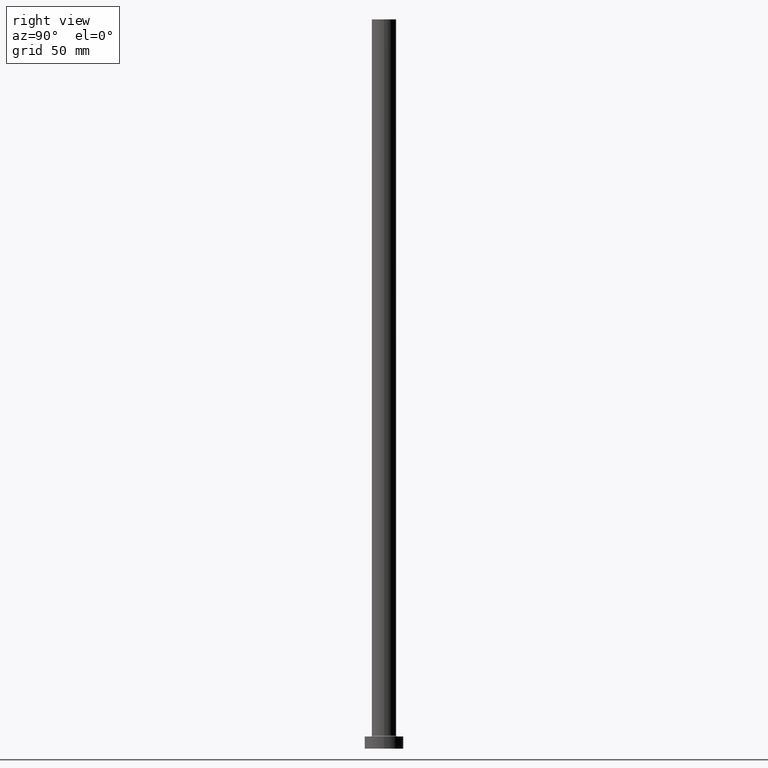
[diagram: clean part render]
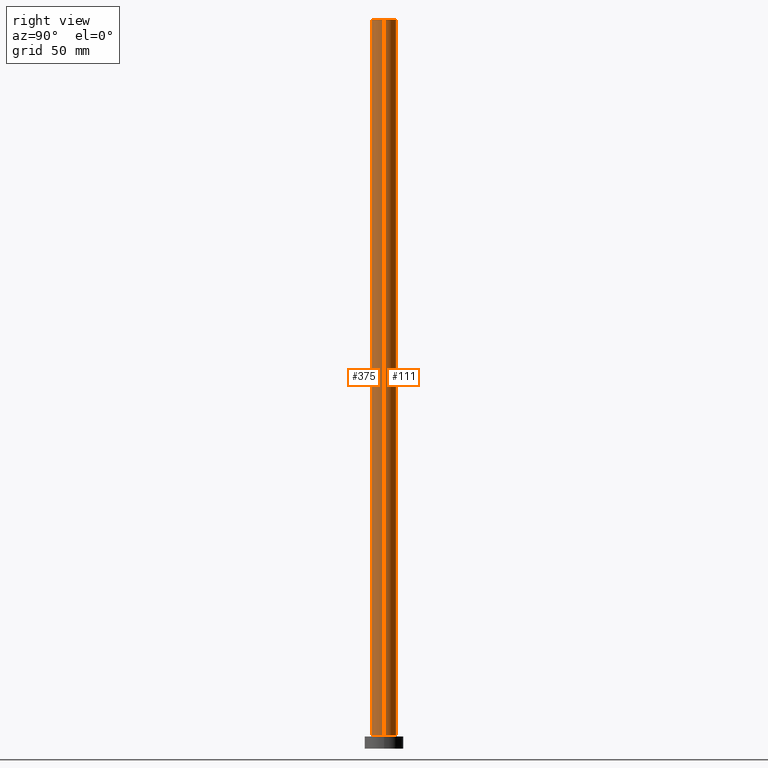
[diagram: same view with one multi-face feature highlighted, each face labeled with its STEP entity id]
A machine part, right view. The highlighted faces form ONE feature: a constant-radius fillet chain: 2 tangent blend faces with common blend radius 5 mm. The faces share edges in the B-rep.
Their STEP definitions:
[1] entity #111 (Cylinder):
#12 = AXIS2_PLACEMENT_3D ( 'NONE', #35, #395, #247 ) ;
#20 = AXIS2_PLACEMENT_3D ( 'NONE', #175, #209, #314 ) ;
#35 = CARTESIAN_POINT ( 'NONE',  ( 0.000000000000000000, 0.000000000000000000, 300.0000000000000000 ) ) ;
#45 = EDGE_CURVE ( 'NONE', #140, #272, #235, .T. ) ;
#53 = CARTESIAN_POINT ( 'NONE',  ( -5.000000000000000000, 0.000000000000000000, 300.0000000000000000 ) ) ;
#61 = LINE ( 'NONE', #206, #381 ) ;
#64 = AXIS2_PLACEMENT_3D ( 'NONE', #431, #407, #326 ) ;
#72 = EDGE_CURVE ( 'NONE', #140, #253, #354, .T. ) ;
#91 = ORIENTED_EDGE ( 'NONE', *, *, #296, .F. ) ;
#102 = ORIENTED_EDGE ( 'NONE', *, *, #45, .F. ) ;
#111 = ADVANCED_FACE ( 'NONE', ( #149 ), #285, .T. ) ;
#125 = ORIENTED_EDGE ( 'NONE', *, *, #72, .T. ) ;
#140 = VERTEX_POINT ( 'NONE', #191 ) ;
#149 = FACE_OUTER_BOUND ( 'NONE', #444, .T. ) ;
#164 = DIRECTION ( 'NONE',  ( -0.000000000000000000, -0.000000000000000000, -1.000000000000000000 ) ) ;
#169 = CARTESIAN_POINT ( 'NONE',  ( -5.000000000000000000, 0.000000000000000000, 5.500000000000005329 ) ) ;
#175 = CARTESIAN_POINT ( 'NONE',  ( 0.000000000000000000, 0.000000000000000000, 5.500000000000005329 ) ) ;
#178 = CARTESIAN_POINT ( 'NONE',  ( 5.000000000000000000, 6.123233995736766282E-16, 300.0000000000000000 ) ) ;
#191 = CARTESIAN_POINT ( 'NONE',  ( 5.000000000000000000, 6.123233995736766282E-16, 300.0000000000000000 ) ) ;
#206 = CARTESIAN_POINT ( 'NONE',  ( -5.000000000000000000, 0.000000000000000000, 300.0000000000000000 ) ) ;
#207 = VECTOR ( 'NONE', #357, 1000.000000000000000 ) ;
#209 = DIRECTION ( 'NONE',  ( 0.000000000000000000, 0.000000000000000000, 1.000000000000000000 ) ) ;
#222 = CIRCLE ( 'NONE', #20, 5.000000000000000000 ) ;
#235 = CIRCLE ( 'NONE', #12, 5.000000000000000000 ) ;
#247 = DIRECTION ( 'NONE',  ( 1.000000000000000000, 0.000000000000000000, 0.000000000000000000 ) ) ;
#253 = VERTEX_POINT ( 'NONE', #402 ) ;
#272 = VERTEX_POINT ( 'NONE', #53 ) ;
#285 = CYLINDRICAL_SURFACE ( 'NONE', #64, 5.000000000000000000 ) ;
#296 = EDGE_CURVE ( 'NONE', #272, #299, #61, .T. ) ;
#299 = VERTEX_POINT ( 'NONE', #169 ) ;
#314 = DIRECTION ( 'NONE',  ( 1.000000000000000000, 0.000000000000000000, 0.000000000000000000 ) ) ;
#326 = DIRECTION ( 'NONE',  ( -1.000000000000000000, 0.000000000000000000, 0.000000000000000000 ) ) ;
#354 = LINE ( 'NONE', #178, #207 ) ;
#357 = DIRECTION ( 'NONE',  ( -0.000000000000000000, -0.000000000000000000, -1.000000000000000000 ) ) ;
#381 = VECTOR ( 'NONE', #164, 1000.000000000000000 ) ;
#395 = DIRECTION ( 'NONE',  ( 0.000000000000000000, 0.000000000000000000, 1.000000000000000000 ) ) ;
#402 = CARTESIAN_POINT ( 'NONE',  ( 5.000000000000000000, 6.123233995736766282E-16, 5.500000000000005329 ) ) ;
#407 = DIRECTION ( 'NONE',  ( -0.000000000000000000, -0.000000000000000000, -1.000000000000000000 ) ) ;
#431 = CARTESIAN_POINT ( 'NONE',  ( 0.000000000000000000, 0.000000000000000000, 300.0000000000000000 ) ) ;
#433 = ORIENTED_EDGE ( 'NONE', *, *, #442, .T. ) ;
#442 = EDGE_CURVE ( 'NONE', #253, #299, #222, .T. ) ;
#444 = EDGE_LOOP ( 'NONE', ( #102, #125, #433, #91 ) ) ;
[2] entity #375 (Cylinder):
#16 = DIRECTION ( 'NONE',  ( 0.000000000000000000, 0.000000000000000000, 1.000000000000000000 ) ) ;
#32 = CIRCLE ( 'NONE', #108, 5.000000000000000000 ) ;
#53 = CARTESIAN_POINT ( 'NONE',  ( -5.000000000000000000, 0.000000000000000000, 300.0000000000000000 ) ) ;
#61 = LINE ( 'NONE', #206, #381 ) ;
#72 = EDGE_CURVE ( 'NONE', #140, #253, #354, .T. ) ;
#108 = AXIS2_PLACEMENT_3D ( 'NONE', #335, #16, #271 ) ;
#130 = FACE_OUTER_BOUND ( 'NONE', #219, .T. ) ;
#140 = VERTEX_POINT ( 'NONE', #191 ) ;
#164 = DIRECTION ( 'NONE',  ( -0.000000000000000000, -0.000000000000000000, -1.000000000000000000 ) ) ;
#169 = CARTESIAN_POINT ( 'NONE',  ( -5.000000000000000000, 0.000000000000000000, 5.500000000000005329 ) ) ;
#178 = CARTESIAN_POINT ( 'NONE',  ( 5.000000000000000000, 6.123233995736766282E-16, 300.0000000000000000 ) ) ;
#191 = CARTESIAN_POINT ( 'NONE',  ( 5.000000000000000000, 6.123233995736766282E-16, 300.0000000000000000 ) ) ;
#203 = ORIENTED_EDGE ( 'NONE', *, *, #296, .T. ) ;
#206 = CARTESIAN_POINT ( 'NONE',  ( -5.000000000000000000, 0.000000000000000000, 300.0000000000000000 ) ) ;
#207 = VECTOR ( 'NONE', #357, 1000.000000000000000 ) ;
#219 = EDGE_LOOP ( 'NONE', ( #284, #339, #203, #309 ) ) ;
#228 = CYLINDRICAL_SURFACE ( 'NONE', #320, 5.000000000000000000 ) ;
#229 = CIRCLE ( 'NONE', #394, 5.000000000000000000 ) ;
#233 = DIRECTION ( 'NONE',  ( 1.000000000000000000, 0.000000000000000000, 0.000000000000000000 ) ) ;
#253 = VERTEX_POINT ( 'NONE', #402 ) ;
#271 = DIRECTION ( 'NONE',  ( 1.000000000000000000, 0.000000000000000000, 0.000000000000000000 ) ) ;
#272 = VERTEX_POINT ( 'NONE', #53 ) ;
#284 = ORIENTED_EDGE ( 'NONE', *, *, #72, .F. ) ;
#296 = EDGE_CURVE ( 'NONE', #272, #299, #61, .T. ) ;
#299 = VERTEX_POINT ( 'NONE', #169 ) ;
#303 = EDGE_CURVE ( 'NONE', #272, #140, #32, .T. ) ;
#309 = ORIENTED_EDGE ( 'NONE', *, *, #396, .T. ) ;
#310 = DIRECTION ( 'NONE',  ( -1.000000000000000000, 0.000000000000000000, 0.000000000000000000 ) ) ;
#320 = AXIS2_PLACEMENT_3D ( 'NONE', #419, #380, #310 ) ;
#335 = CARTESIAN_POINT ( 'NONE',  ( 0.000000000000000000, 0.000000000000000000, 300.0000000000000000 ) ) ;
#339 = ORIENTED_EDGE ( 'NONE', *, *, #303, .F. ) ;
#354 = LINE ( 'NONE', #178, #207 ) ;
#357 = DIRECTION ( 'NONE',  ( -0.000000000000000000, -0.000000000000000000, -1.000000000000000000 ) ) ;
#374 = CARTESIAN_POINT ( 'NONE',  ( 0.000000000000000000, 0.000000000000000000, 5.500000000000005329 ) ) ;
#375 = ADVANCED_FACE ( 'NONE', ( #130 ), #228, .T. ) ;
#380 = DIRECTION ( 'NONE',  ( -0.000000000000000000, -0.000000000000000000, -1.000000000000000000 ) ) ;
#381 = VECTOR ( 'NONE', #164, 1000.000000000000000 ) ;
#394 = AXIS2_PLACEMENT_3D ( 'NONE', #374, #414, #233 ) ;
#396 = EDGE_CURVE ( 'NONE', #299, #253, #229, .T. ) ;
#402 = CARTESIAN_POINT ( 'NONE',  ( 5.000000000000000000, 6.123233995736766282E-16, 5.500000000000005329 ) ) ;
#414 = DIRECTION ( 'NONE',  ( 0.000000000000000000, 0.000000000000000000, 1.000000000000000000 ) ) ;
#419 = CARTESIAN_POINT ( 'NONE',  ( 0.000000000000000000, 0.000000000000000000, 300.0000000000000000 ) ) ;